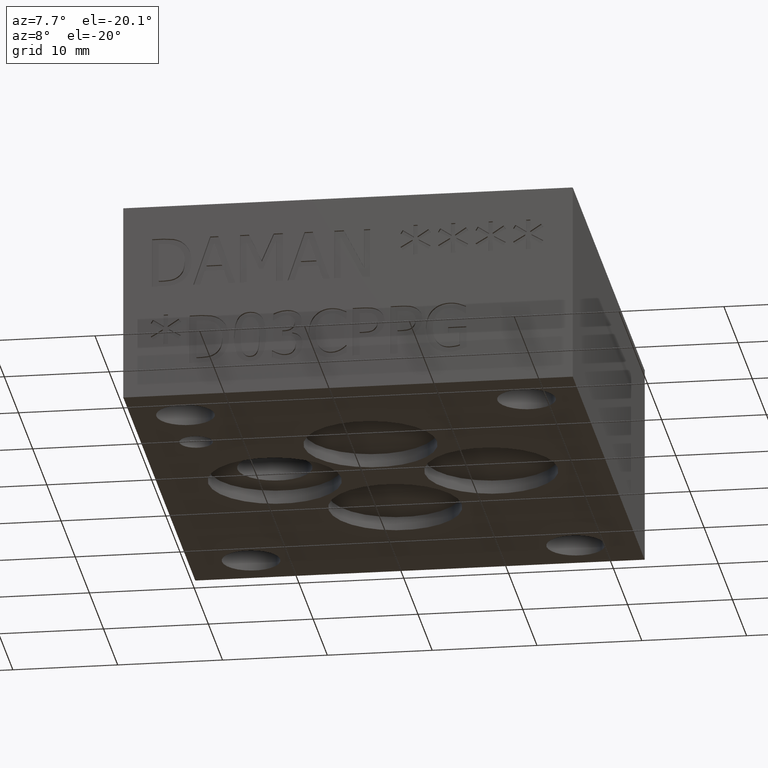
[diagram: clean part render]
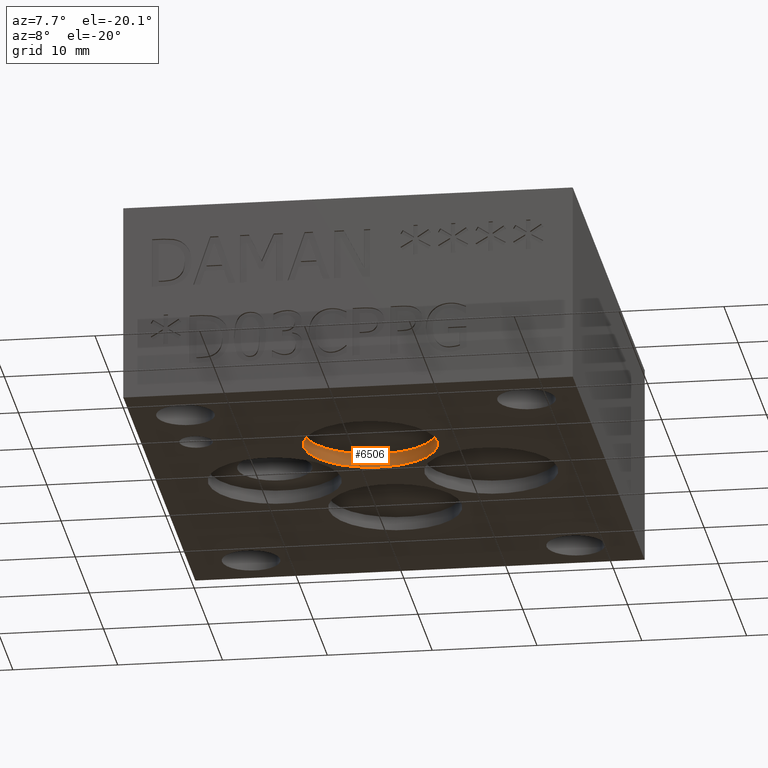
[diagram: same view with one face highlighted and labeled with its STEP entity id]
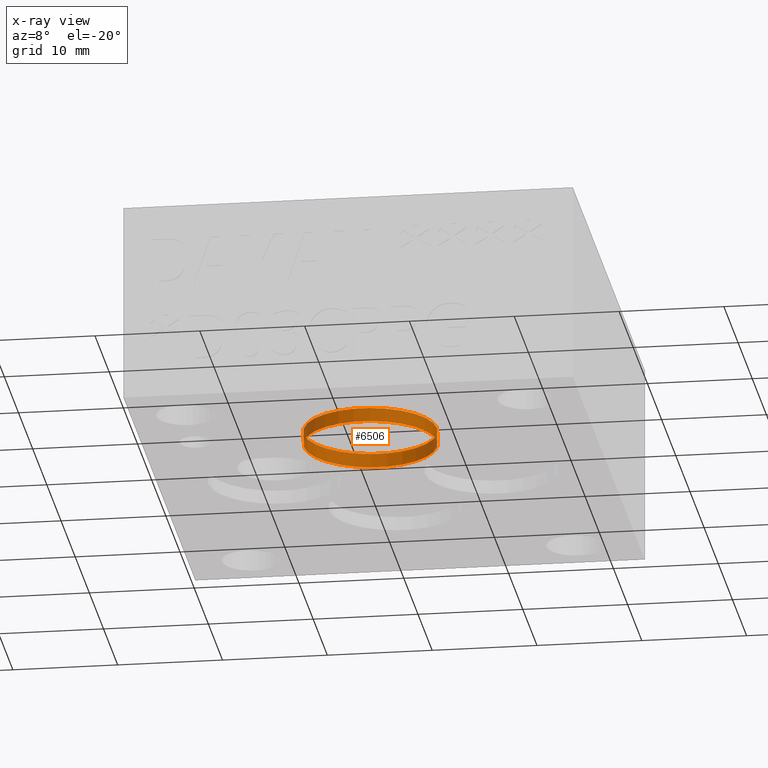
[diagram: x-ray of the same camera — body ghosted, the highlighted face saturated]
A machine part, auxiliary view. The second image highlights one B-rep face of the part: STEP entity #6506.
The next image is the same camera in x-ray: the body ghosted, the highlighted face saturated — about 0% of this face is hidden behind the body in this view.
In plain terms, the highlighted cylindrical surface (bore or boss wall) has radius 6.35 mm, axis along (0, 0, -1).
Its self-contained STEP definition (entity closure, byte-faithful):
#16=CYLINDRICAL_SURFACE('',#6776,0.25);
#37=CIRCLE('',#6774,0.25);
#38=CIRCLE('',#6775,0.25);
#39=CIRCLE('',#6777,0.25);
#40=CIRCLE('',#6778,0.25);
#528=FACE_OUTER_BOUND('',#899,.T.);
#899=EDGE_LOOP('',(#5847,#5848,#5849,#5850,#5851,#5852));
#1609=LINE('',#11509,#2305);
#2305=VECTOR('',#7967,0.25);
#3120=VERTEX_POINT('',#11503);
#3121=VERTEX_POINT('',#11504);
#3122=VERTEX_POINT('',#11508);
#3123=VERTEX_POINT('',#11510);
#4043=EDGE_CURVE('',#3120,#3121,#37,.T.);
#4044=EDGE_CURVE('',#3121,#3120,#38,.T.);
#4045=EDGE_CURVE('',#3121,#3122,#1609,.T.);
#4046=EDGE_CURVE('',#3123,#3122,#39,.T.);
#4047=EDGE_CURVE('',#3122,#3123,#40,.T.);
#5847=ORIENTED_EDGE('',*,*,#4043,.F.);
#5848=ORIENTED_EDGE('',*,*,#4044,.F.);
#5849=ORIENTED_EDGE('',*,*,#4045,.T.);
#5850=ORIENTED_EDGE('',*,*,#4046,.F.);
#5851=ORIENTED_EDGE('',*,*,#4047,.F.);
#5852=ORIENTED_EDGE('',*,*,#4045,.F.);
#6506=ADVANCED_FACE('',(#528),#16,.F.);
#6774=AXIS2_PLACEMENT_3D('',#11505,#7961,#7962);
#6775=AXIS2_PLACEMENT_3D('',#11506,#7963,#7964);
#6776=AXIS2_PLACEMENT_3D('',#11507,#7965,#7966);
#6777=AXIS2_PLACEMENT_3D('',#11511,#7968,#7969);
#6778=AXIS2_PLACEMENT_3D('',#11512,#7970,#7971);
#7961=DIRECTION('center_axis',(0.,0.,-1.));
#7962=DIRECTION('ref_axis',(1.,0.,0.));
#7963=DIRECTION('center_axis',(0.,0.,-1.));
#7964=DIRECTION('ref_axis',(1.,0.,0.));
#7965=DIRECTION('center_axis',(0.,0.,-1.));
#7966=DIRECTION('ref_axis',(1.,0.,0.));
#7967=DIRECTION('',(0.,0.,-1.));
#7968=DIRECTION('center_axis',(0.,0.,1.));
#7969=DIRECTION('ref_axis',(1.,0.,0.));
#7970=DIRECTION('center_axis',(0.,0.,1.));
#7971=DIRECTION('ref_axis',(1.,0.,0.));
#11503=CARTESIAN_POINT('',(1.094,0.624,0.052));
#11504=CARTESIAN_POINT('',(0.594,0.624,0.052));
#11505=CARTESIAN_POINT('Origin',(0.844,0.624,0.052));
#11506=CARTESIAN_POINT('Origin',(0.844,0.624,0.052));
#11507=CARTESIAN_POINT('Origin',(0.844,0.624,0.026));
#11508=CARTESIAN_POINT('',(0.594,0.624,0.));
#11509=CARTESIAN_POINT('',(0.594,0.624,0.026));
#11510=CARTESIAN_POINT('',(1.094,0.624,0.));
#11511=CARTESIAN_POINT('Origin',(0.844,0.624,0.));
#11512=CARTESIAN_POINT('Origin',(0.844,0.624,0.));